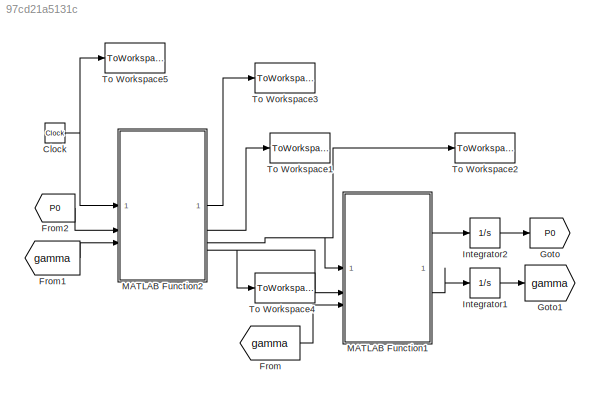
MODEL slx_97cd21a5131c
KIND model
CONFIG AbsTol = auto
CONFIG EnableMultiTasking = off
CONFIG FixedStep = auto
CONFIG MaxStep = auto
CONFIG MinStep = auto
CONFIG RelTol = 1e-3
CONFIG SampleTimeConstraint = Unconstrained
CONFIG SolverName = VariableStepAuto
CONFIG StartTime = 0.0
CONFIG StopTime = 40
BLOCK [Clock] Clock
BLOCK [From] From
  GotoTag = gamma
BLOCK [From] From1
  GotoTag = gamma
BLOCK [From] From2
  GotoTag = P0
BLOCK [Goto] Goto
  GotoTag = P0
BLOCK [Goto] Goto1
  GotoTag = gamma
BLOCK [Integrator] Integrator1
BLOCK [Integrator] Integrator2
  InitialCondition = [0;0]
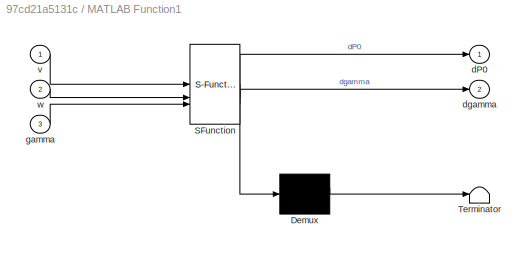
BLOCK [SubSystem] MATLAB Function1
  ErrorFcn = Stateflow.Translate.translate
  PermitHierarchicalResolution = ExplicitOnly
  SFBlockType = MATLAB Function
  TreatAsAtomicUnit = on
BLOCK [Demux] MATLAB Function1/ Demux 
  Outputs = 1
BLOCK [S-Function] MATLAB Function1/ SFunction 
  EnableBusSupport = off
  FunctionName = sf_sfun
  PortCounts = [3 3]
  SFcnIsStateOwnerBlock = off
  SFunctionDeploymentMode = off
  Tag = Stateflow S-Function 1
BLOCK [Terminator] MATLAB Function1/ Terminator 
BLOCK [Outport] MATLAB Function1/dP0
  VectorParamsAs1DForOutWhenUnconnected = off
BLOCK [Outport] MATLAB Function1/dgamma
  Port = 2
  VectorParamsAs1DForOutWhenUnconnected = off
BLOCK [Inport] MATLAB Function1/gamma
  Port = 3
BLOCK [Inport] MATLAB Function1/v
BLOCK [Inport] MATLAB Function1/w
  Port = 2
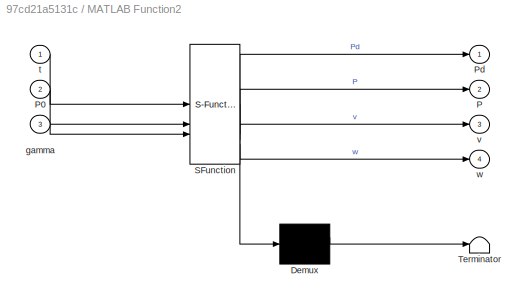
BLOCK [SubSystem] MATLAB Function2
  ErrorFcn = Stateflow.Translate.translate
  PermitHierarchicalResolution = ExplicitOnly
  SFBlockType = MATLAB Function
  TreatAsAtomicUnit = on
BLOCK [Demux] MATLAB Function2/ Demux 
  Outputs = 1
BLOCK [S-Function] MATLAB Function2/ SFunction 
  EnableBusSupport = off
  FunctionName = sf_sfun
  PortCounts = [3 5]
  SFcnIsStateOwnerBlock = off
  SFunctionDeploymentMode = off
  Tag = Stateflow S-Function 3
BLOCK [Terminator] MATLAB Function2/ Terminator 
BLOCK [Outport] MATLAB Function2/P
  Port = 2
  VectorParamsAs1DForOutWhenUnconnected = off
BLOCK [Inport] MATLAB Function2/P0
  Port = 2
BLOCK [Outport] MATLAB Function2/Pd
  VectorParamsAs1DForOutWhenUnconnected = off
BLOCK [Inport] MATLAB Function2/gamma
  Port = 3
BLOCK [Inport] MATLAB Function2/t
BLOCK [Outport] MATLAB Function2/v
  Port = 3
  VectorParamsAs1DForOutWhenUnconnected = off
BLOCK [Outport] MATLAB Function2/w
  Port = 4
  VectorParamsAs1DForOutWhenUnconnected = off
BLOCK [ToWorkspace] To Workspace1
  FixptAsFi = on
  MaxDataPoints = inf
  SampleTime = -1
  Save2DSignal = 2-D array (concatenate along first dimension)
  VariableName = P
BLOCK [ToWorkspace] To Workspace2
  FixptAsFi = on
  MaxDataPoints = inf
  SampleTime = -1
  Save2DSignal = 2-D array (concatenate along first dimension)
  VariableName = v
BLOCK [ToWorkspace] To Workspace3
  FixptAsFi = on
  MaxDataPoints = inf
  SampleTime = -1
  Save2DSignal = 2-D array (concatenate along first dimension)
  VariableName = Pd
BLOCK [ToWorkspace] To Workspace4
  FixptAsFi = on
  MaxDataPoints = inf
  SampleTime = -1
  Save2DSignal = 2-D array (concatenate along first dimension)
  VariableName = w
BLOCK [ToWorkspace] To Workspace5
  FixptAsFi = on
  MaxDataPoints = inf
  SampleTime = -1
  Save2DSignal = 2-D array (concatenate along first dimension)
  VariableName = t
NET Clock:1 -> MATLAB Function2:1, To Workspace5:1
LINE From1:1 -> MATLAB Function2:3
LINE From2:1 -> MATLAB Function2:2
LINE From:1 -> MATLAB Function1:3
LINE Integrator1:1 -> Goto1:1
LINE Integrator2:1 -> Goto:1
LINE MATLAB Function1:1 -> Integrator2:1
LINE MATLAB Function1:2 -> Integrator1:1
LINE MATLAB Function2:1 -> To Workspace3:1
LINE MATLAB Function2:2 -> To Workspace1:1
NET MATLAB Function2:3 -> MATLAB Function1:1, To Workspace2:1
NET MATLAB Function2:4 -> MATLAB Function1:2, To Workspace4:1
note: NET lines group one-source signal fan-out (src -> all destinations, sorted); 1:1 wires keep LINE
CHART MATLAB Function1 states=1 transitions=1
  STATE_LABEL 'eML_blk_kernel()'
  STATE_LABEL 'SCRIPT:\nfunction [dP0,dgamma] = SNL(v,w,gamma)\ndP0=[v*cos(gamma);v*sin(gamma)];\ndgamma=w;\n'
CHART MATLAB Function2 states=1 transitions=1
  STATE_LABEL 'eML_blk_kernel()'
  STATE_LABEL 'SCRIPT:\nfunction [Pd,P,v,w] = POut(t,P0,gamma)\n%Control Pd del robot tomando punto por fuera\nh=0.1;  kp=2;\n%Trayectoria deseada\nT=40; b=2*pi/T; %es un circulo\nPd = [cos(b*t); sin(b*t)]; %posicion deseada\ndPd = [-b*sin(b*t); b*cos(b*t)]; %derivada de la posicion deseada\n%Punto por fuera\nP = [P0(1)+h*cos(gamma); P0(2)+h*sin(gamma)]; %coordenadas del punto\n%Error del seguimiento\ne = Pd-P;\n%Matriz de ...<+189ch>'
CHART  states=0 transitions=0
CHART  states=0 transitions=0
